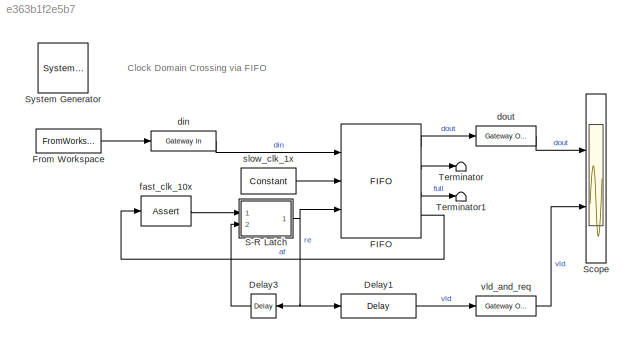
MODEL slx_e363b1f2e5b7
KIND model
CONFIG AbsTol = auto
CONFIG FixedStep = auto
CONFIG InitFcn = x=[0:2^15-1];
CONFIG MaxStep = auto
CONFIG MinStep = auto
CONFIG RelTol = 1e-3
CONFIG SampleTimeConstraint = Unconstrained
CONFIG Solver = VariableStepAuto
CONFIG SolverMode = Auto
CONFIG SolverName = VariableStepAuto
CONFIG StartTime = 0.0
CONFIG StopTime = 52
BLOCK [Reference]  System Generator  REF=xbsIndex_r4/ System Generator
  AttributesFormatString = System\nGenerator
  Ports = []
  SourceBlock = xbsIndex_r4/ System Generator
  SourceType = Xilinx System Generator Block
  Tag = genX
  UserDataPersistent = on
BLOCK [Reference] Delay1  REF=xbsIndex_r4/Delay
  Ports = [1, 1]
  SourceBlock = xbsIndex_r4/Delay
  SourceType = Xilinx Delay Block
BLOCK [Reference] Delay3  REF=xbsIndex_r4/Delay
  Ports = [1, 1]
  SourceBlock = xbsIndex_r4/Delay
  SourceType = Xilinx Delay Block
BLOCK [Reference] FIFO  REF=xbsIndex_r4/FIFO
  Ports = [3, 4]
  SourceBlock = xbsIndex_r4/FIFO
  SourceType = Xilinx FIFO Block Block
BLOCK [FromWorkspace] From Workspace
  Interpolate = off
  OutputAfterFinalValue = Holding final value
  SampleTime = 1
  VariableName = timeseries(x)
  ZeroCross = on
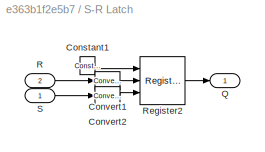
BLOCK [SubSystem] S-R Latch
  Ports = [2, 1]
  RequestExecContextInheritance = off
  Variant = off
BLOCK [Reference] S-R Latch/Constant1  REF=xbsIndex_r4/Constant
  Ports = [0, 1]
  SourceBlock = xbsIndex_r4/Constant
  SourceType = Xilinx Constant Block Block
BLOCK [Reference] S-R Latch/Convert1  REF=xbsIndex_r4/Convert
  Ports = [1, 1]
  SourceBlock = xbsIndex_r4/Convert
  SourceType = Xilinx Type Converter Block
BLOCK [Reference] S-R Latch/Convert2  REF=xbsIndex_r4/Convert
  Ports = [1, 1]
  SourceBlock = xbsIndex_r4/Convert
  SourceType = Xilinx Type Converter Block
BLOCK [Outport] S-R Latch/Q
  IconDisplay = Port number
BLOCK [Inport] S-R Latch/R
  IconDisplay = Port number
  Port = 2
BLOCK [Reference] S-R Latch/Register2  REF=xbsIndex_r4/Register
  Ports = [3, 1]
  SourceBlock = xbsIndex_r4/Register
  SourceType = Xilinx Register Block
BLOCK [Inport] S-R Latch/S
  IconDisplay = Port number
BLOCK [Scope] Scope
  NumInputPorts = 2
  Ports = [2]
  ScopeSpecificationString = Simulink.scopes.TimeScopeBlockCfg('CurrentConfiguration', extmgr.ConfigurationSet(extmgr.Configuration('Core','General UI',true),extmgr.Configuration('Core','Source UI',true),extmgr.Configuration('Sources','WiredSimulink',true),extmgr.Configuration('Visuals','Time Domain',true,'SerializedDisplays',{struct('MinYLimReal','-6.125','MaxYLimReal','55.125','YLabelReal','','MinYLimMag','0.00000','MaxYLim...<+2135ch>
BLOCK [Terminator] Terminator
BLOCK [Terminator] Terminator1
BLOCK [Reference] din  REF=xbsIndex_r4/Gateway In
  Ports = [1, 1]
  SourceBlock = xbsIndex_r4/Gateway In
  SourceType = Xilinx Gateway In Block
BLOCK [Reference] dout  REF=xbsIndex_r4/Gateway Out
  Ports = [1, 1]
  SourceBlock = xbsIndex_r4/Gateway Out
  SourceType = Xilinx Gateway Out Block
BLOCK [Reference] fast_clk_10x  REF=xbsIndex_r4/Assert
  Ports = [1, 1]
  SourceBlock = xbsIndex_r4/Assert
  SourceType = Xilinx Assert Block
BLOCK [Reference] slow_clk_1x   REF=xbsIndex_r4/Constant
  Ports = [0, 1]
  SourceBlock = xbsIndex_r4/Constant
  SourceType = Xilinx Constant Block Block
BLOCK [Reference] vld_and_req  REF=xbsIndex_r4/Gateway Out
  Ports = [1, 1]
  SourceBlock = xbsIndex_r4/Gateway Out
  SourceType = Xilinx Gateway Out Block
ANNOTATION (root): Clock Domain Crossing via FIFO
LINE Delay1:1 -> vld_and_req:1
LINE Delay3:1 -> S-R Latch:2
LINE FIFO:1 -> dout:1
LINE FIFO:2 -> Terminator:1
LINE FIFO:3 -> Terminator1:1
LINE FIFO:4 -> fast_clk_10x:1
LINE From Workspace:1 -> din:1
LINE S-R Latch/Constant1:1 -> S-R Latch/Register2:1
LINE S-R Latch/Convert1:1 -> S-R Latch/Register2:2
LINE S-R Latch/Convert2:1 -> S-R Latch/Register2:3
LINE S-R Latch/R:1 -> S-R Latch/Convert1:1
LINE S-R Latch/Register2:1 -> S-R Latch/Q:1
LINE S-R Latch/S:1 -> S-R Latch/Convert2:1
NET S-R Latch:1 -> Delay1:1, Delay3:1, FIFO:3
LINE din:1 -> FIFO:1
LINE dout:1 -> Scope:1
LINE fast_clk_10x:1 -> S-R Latch:1
LINE slow_clk_1x :1 -> FIFO:2
LINE vld_and_req:1 -> Scope:2
note: NET lines group one-source signal fan-out (src -> all destinations, sorted); 1:1 wires keep LINE
